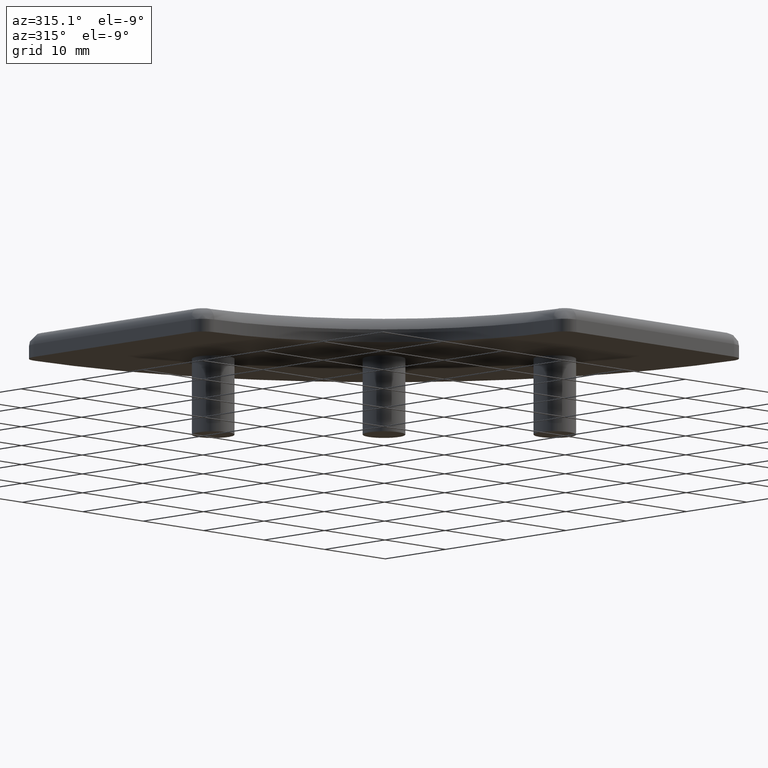
[diagram: clean part render]
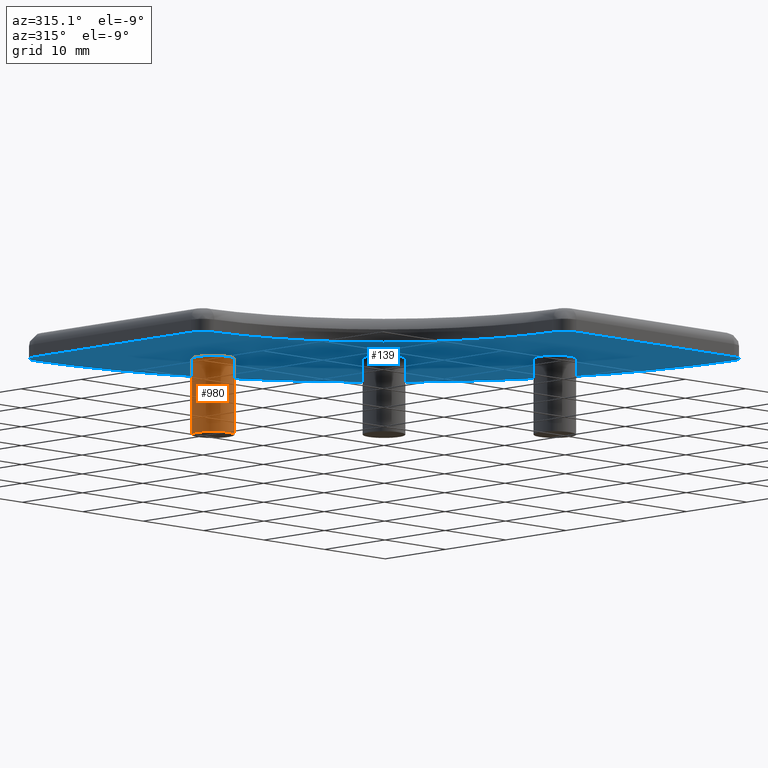
[diagram: same view with the hole feature highlighted: cylindrical wall and planar end face, labeled with their STEP entity ids]
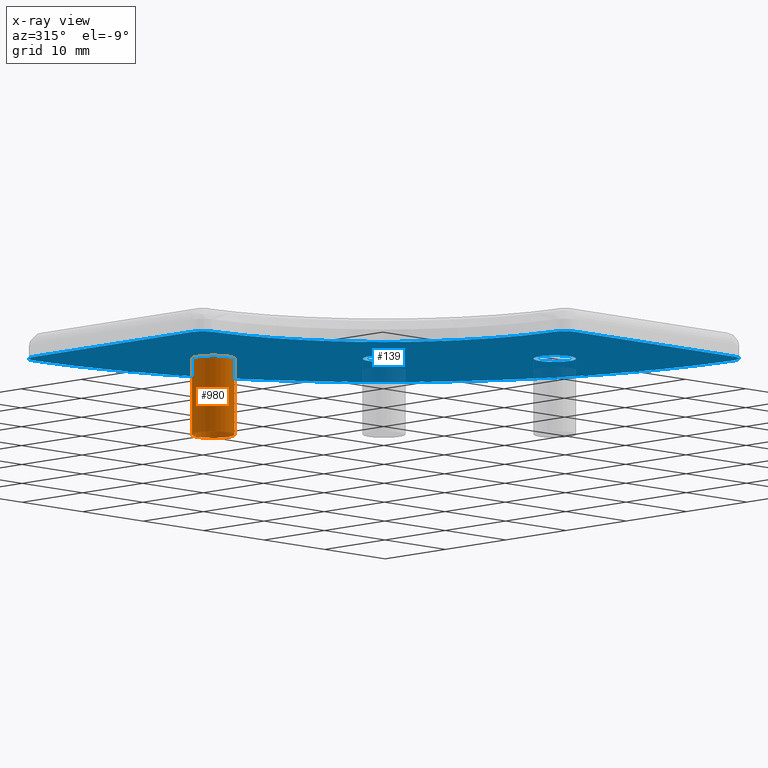
[diagram: x-ray of the same camera — body ghosted, the hole faces saturated]
A machine part, auxiliary view. The highlighted faces form one hole feature of diameter 5 mm: the cylindrical wall (entity #980, orange) and its adjacent planar end face (entity #139, blue) — they share a circular edge in the B-rep.
The next image is the same camera in x-ray (body ghosted, the hole faces saturated) — the bore reads through the body.
Wall:
#99=CARTESIAN_POINT('',(-12.374368670764587,12.374368670764575,0.0));
#100=VERTEX_POINT('',#99);
#101=CARTESIAN_POINT('',(-15.909902576697325,15.909902576697313,0.0));
#102=VERTEX_POINT('',#101);
#103=CARTESIAN_POINT('',(-14.142135623730956,14.142135623730944,0.0));
#104=DIRECTION('',(0.0,0.0,-1.0));
#105=DIRECTION('',(-0.707106781186548,0.707106781186547,0.0));
#106=AXIS2_PLACEMENT_3D('',#103,#104,#105);
#107=CIRCLE('',#106,2.500000000000000);
#108=EDGE_CURVE('',#100,#102,#107,.T.);
#110=CARTESIAN_POINT('',(-14.142135623730956,14.142135623730944,0.0));
#111=DIRECTION('',(0.0,0.0,-1.0));
#112=DIRECTION('',(-0.707106781186548,0.707106781186547,0.0));
#113=AXIS2_PLACEMENT_3D('',#110,#111,#112);
#114=CIRCLE('',#113,2.500000000000000);
#115=EDGE_CURVE('',#102,#100,#114,.T.);
#946=CARTESIAN_POINT('',(-14.142135623730956,14.142135623730944,0.0));
#947=DIRECTION('',(0.0,0.0,-1.0));
#948=DIRECTION('',(-0.707106781186548,0.707106781186547,0.0));
#949=AXIS2_PLACEMENT_3D('',#946,#947,#948);
#950=CYLINDRICAL_SURFACE('',#949,2.500000000000000);
#951=CARTESIAN_POINT('',(-12.374368670764591,12.374368670764568,-9.0));
#952=VERTEX_POINT('',#951);
#953=CARTESIAN_POINT('',(-15.909902576697329,15.909902576697306,-9.0));
#954=VERTEX_POINT('',#953);
#955=CARTESIAN_POINT('',(-14.142135623730960,14.142135623730937,-9.0));
#956=DIRECTION('',(0.0,0.0,-1.0));
#957=DIRECTION('',(-0.707106781186548,0.707106781186547,0.0));
#958=AXIS2_PLACEMENT_3D('',#955,#956,#957);
#959=CIRCLE('',#958,2.500000000000000);
#960=EDGE_CURVE('',#952,#954,#959,.T.);
#961=ORIENTED_EDGE('',*,*,#960,.F.);
#962=CARTESIAN_POINT('',(-14.142135623730960,14.142135623730937,-9.0));
#963=DIRECTION('',(0.0,0.0,-1.0));
#964=DIRECTION('',(-0.707106781186548,0.707106781186547,0.0));
#965=AXIS2_PLACEMENT_3D('',#962,#963,#964);
#966=CIRCLE('',#965,2.500000000000000);
#967=EDGE_CURVE('',#954,#952,#966,.T.);
#968=ORIENTED_EDGE('',*,*,#967,.F.);
#969=CARTESIAN_POINT('',(-15.909902576697325,15.909902576697313,0.0));
#970=DIRECTION('',(0.0,0.0,-1.0));
#971=VECTOR('',#970,9.0);
#972=LINE('',#969,#971);
#973=EDGE_CURVE('',#102,#954,#972,.T.);
#974=ORIENTED_EDGE('',*,*,#973,.F.);
#975=ORIENTED_EDGE('',*,*,#115,.T.);
#976=ORIENTED_EDGE('',*,*,#108,.T.);
#977=ORIENTED_EDGE('',*,*,#973,.T.);
#978=EDGE_LOOP('',(#961,#968,#974,#975,#976,#977));
#979=FACE_OUTER_BOUND('',#978,.T.);
#980=ADVANCED_FACE('',(#979),#950,.T.);
End face:
#2=CARTESIAN_POINT('',(-35.980106959879357,-35.976389881100047,0.0));
#3=DIRECTION('',(0.0,0.0,1.0));
#4=DIRECTION('',(1.0,0.0,0.0));
#5=AXIS2_PLACEMENT_3D('',#2,#3,#4);
#6=PLANE('',#5);
#7=CARTESIAN_POINT('',(27.983366097920932,-29.980268532271502,0.0));
#8=VERTEX_POINT('',#7);
#9=CARTESIAN_POINT('',(29.982170704958794,-27.911129954875797,0.0));
#10=VERTEX_POINT('',#9);
#11=CARTESIAN_POINT('',(27.983366097920932,-27.980268532271502,0.0));
#12=DIRECTION('',(0.0,0.0,1.0));
#13=DIRECTION('',(0.0,-1.0,0.0));
#14=AXIS2_PLACEMENT_3D('',#11,#12,#13);
#15=CIRCLE('',#14,2.0);
#16=EDGE_CURVE('',#8,#10,#15,.T.);
#17=ORIENTED_EDGE('',*,*,#16,.F.);
#18=CARTESIAN_POINT('',(1.954065934955320,-29.980268532271502,0.0));
#19=VERTEX_POINT('',#18);
#20=CARTESIAN_POINT('',(1.954065934955320,-29.980268532271502,0.0));
#21=DIRECTION('',(1.0,0.0,0.0));
#22=VECTOR('',#21,26.029300162965612);
#23=LINE('',#20,#22);
#24=EDGE_CURVE('',#19,#8,#23,.T.);
#25=ORIENTED_EDGE('',*,*,#24,.F.);
#26=CARTESIAN_POINT('',(-0.042023575047292,-28.105275204323554,0.0));
#27=VERTEX_POINT('',#26);
#28=CARTESIAN_POINT('',(1.954065934955320,-27.980268532271502,0.0));
#29=DIRECTION('',(0.0,0.0,1.0));
#30=DIRECTION('',(-0.998044755001306,-0.062503336026028,0.0));
#31=AXIS2_PLACEMENT_3D('',#28,#29,#30);
#32=CIRCLE('',#31,2.000000000000000);
#33=EDGE_CURVE('',#27,#19,#32,.T.);
#34=ORIENTED_EDGE('',*,*,#33,.F.);
#35=CARTESIAN_POINT('',(-28.108366232074818,-0.039026367158044,0.0));
#36=VERTEX_POINT('',#35);
#37=CARTESIAN_POINT('',(-29.983366225086488,-29.980375285104387,0.0));
#38=DIRECTION('',(0.0,0.0,-1.0));
#39=DIRECTION('',(0.998044755001306,0.062503336026028,0.0));
#40=AXIS2_PLACEMENT_3D('',#37,#38,#39);
#41=CIRCLE('',#40,30.000000000000007);
#42=EDGE_CURVE('',#36,#27,#41,.T.);
#43=ORIENTED_EDGE('',*,*,#42,.F.);
#44=CARTESIAN_POINT('',(-29.983366232540707,1.957063560705038,0.0));
#45=VERTEX_POINT('',#44);
#46=CARTESIAN_POINT('',(-27.983366232540707,1.957063560705034,0.0));
#47=DIRECTION('',(0.0,0.0,1.0));
#48=DIRECTION('',(-1.0,1.776357E-015,0.0));
#49=AXIS2_PLACEMENT_3D('',#46,#47,#48);
#50=CIRCLE('',#49,2.0);
#51=EDGE_CURVE('',#45,#36,#50,.T.);
#52=ORIENTED_EDGE('',*,*,#51,.F.);
#53=CARTESIAN_POINT('',(-29.983366232540707,27.985132103185499,0.0));
#54=VERTEX_POINT('',#53);
#55=CARTESIAN_POINT('',(-29.983366232540707,27.985132103185499,0.0));
#56=DIRECTION('',(0.0,-1.0,0.0));
#57=VECTOR('',#56,26.028068542480462);
#58=LINE('',#55,#57);
#59=EDGE_CURVE('',#54,#45,#58,.T.);
#60=ORIENTED_EDGE('',*,*,#59,.F.);
#61=CARTESIAN_POINT('',(-27.913001899711862,29.979030290613615,0.0));
#62=VERTEX_POINT('',#61);
#63=CARTESIAN_POINT('',(-27.983372145802594,27.980268666891284,0.0));
#64=DIRECTION('',(0.0,0.0,1.0));
#65=DIRECTION('',(0.035185123045367,0.999380811861166,0.0));
#66=AXIS2_PLACEMENT_3D('',#63,#64,#65);
#67=CIRCLE('',#66,2.000000000000000);
#68=EDGE_CURVE('',#62,#54,#67,.T.);
#69=ORIENTED_EDGE('',*,*,#68,.F.);
#70=CARTESIAN_POINT('',(-29.981967506176463,-29.985287276746956,0.0));
#71=DIRECTION('',(0.0,0.0,1.0));
#72=DIRECTION('',(0.999999996501695,0.000083645741258,0.0));
#73=AXIS2_PLACEMENT_3D('',#70,#71,#72);
#74=CIRCLE('',#73,60.000000000000014);
#75=EDGE_CURVE('',#10,#62,#74,.T.);
#76=ORIENTED_EDGE('',*,*,#75,.F.);
#77=EDGE_LOOP('',(#17,#25,#34,#43,#52,#60,#69,#76));
#78=FACE_OUTER_BOUND('',#77,.T.);
#79=CARTESIAN_POINT('',(1.767766952966369,-1.767766952966369,0.0));
#80=VERTEX_POINT('',#79);
#81=CARTESIAN_POINT('',(-1.767766952966369,1.767766952966369,0.0));
#82=VERTEX_POINT('',#81);
#83=CARTESIAN_POINT('',(0.0,0.0,0.0));
#84=DIRECTION('',(0.0,0.0,-1.0));
#85=DIRECTION('',(-0.707106781186548,0.707106781186547,0.0));
#86=AXIS2_PLACEMENT_3D('',#83,#84,#85);
#87=CIRCLE('',#86,2.500000000000000);
#88=EDGE_CURVE('',#80,#82,#87,.T.);
#89=ORIENTED_EDGE('',*,*,#88,.F.);
#90=CARTESIAN_POINT('',(0.0,0.0,0.0));
#91=DIRECTION('',(0.0,0.0,-1.0));
#92=DIRECTION('',(-0.707106781186548,0.707106781186547,0.0));
#93=AXIS2_PLACEMENT_3D('',#90,#91,#92);
#94=CIRCLE('',#93,2.500000000000000);
#95=EDGE_CURVE('',#82,#80,#94,.T.);
#96=ORIENTED_EDGE('',*,*,#95,.F.);
#97=EDGE_LOOP('',(#89,#96));
#98=FACE_BOUND('',#97,.T.);
#99=CARTESIAN_POINT('',(-12.374368670764587,12.374368670764575,0.0));
#100=VERTEX_POINT('',#99);
#101=CARTESIAN_POINT('',(-15.909902576697325,15.909902576697313,0.0));
#102=VERTEX_POINT('',#101);
#103=CARTESIAN_POINT('',(-14.142135623730956,14.142135623730944,0.0));
#104=DIRECTION('',(0.0,0.0,-1.0));
#105=DIRECTION('',(-0.707106781186548,0.707106781186547,0.0));
#106=AXIS2_PLACEMENT_3D('',#103,#104,#105);
#107=CIRCLE('',#106,2.500000000000000);
#108=EDGE_CURVE('',#100,#102,#107,.T.);
#109=ORIENTED_EDGE('',*,*,#108,.F.);
#110=CARTESIAN_POINT('',(-14.142135623730956,14.142135623730944,0.0));
#111=DIRECTION('',(0.0,0.0,-1.0));
#112=DIRECTION('',(-0.707106781186548,0.707106781186547,0.0));
#113=AXIS2_PLACEMENT_3D('',#110,#111,#112);
#114=CIRCLE('',#113,2.500000000000000);
#115=EDGE_CURVE('',#102,#100,#114,.T.);
#116=ORIENTED_EDGE('',*,*,#115,.F.);
#117=EDGE_LOOP('',(#109,#116));
#118=FACE_BOUND('',#117,.T.);
#119=CARTESIAN_POINT('',(15.909902576697315,-15.909902576697323,0.0));
#120=VERTEX_POINT('',#119);
#121=CARTESIAN_POINT('',(12.374368670764579,-12.374368670764586,0.0));
#122=VERTEX_POINT('',#121);
#123=CARTESIAN_POINT('',(14.142135623730946,-14.142135623730955,0.0));
#124=DIRECTION('',(0.0,0.0,-1.0));
#125=DIRECTION('',(-0.707106781186547,0.707106781186548,0.0));
#126=AXIS2_PLACEMENT_3D('',#123,#124,#125);
#127=CIRCLE('',#126,2.500000000000000);
#128=EDGE_CURVE('',#120,#122,#127,.T.);
#129=ORIENTED_EDGE('',*,*,#128,.F.);
#130=CARTESIAN_POINT('',(14.142135623730946,-14.142135623730955,0.0));
#131=DIRECTION('',(0.0,0.0,-1.0));
#132=DIRECTION('',(-0.707106781186547,0.707106781186548,0.0));
#133=AXIS2_PLACEMENT_3D('',#130,#131,#132);
#134=CIRCLE('',#133,2.500000000000000);
#135=EDGE_CURVE('',#122,#120,#134,.T.);
#136=ORIENTED_EDGE('',*,*,#135,.F.);
#137=EDGE_LOOP('',(#129,#136));
#138=FACE_BOUND('',#137,.T.);
#139=ADVANCED_FACE('',(#78,#98,#118,#138),#6,.F.);